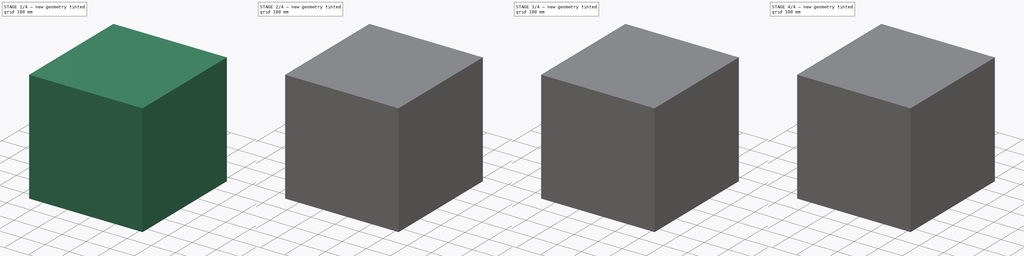
[diagram: build sequence overview — one tinted view per stage of 4, left to right]
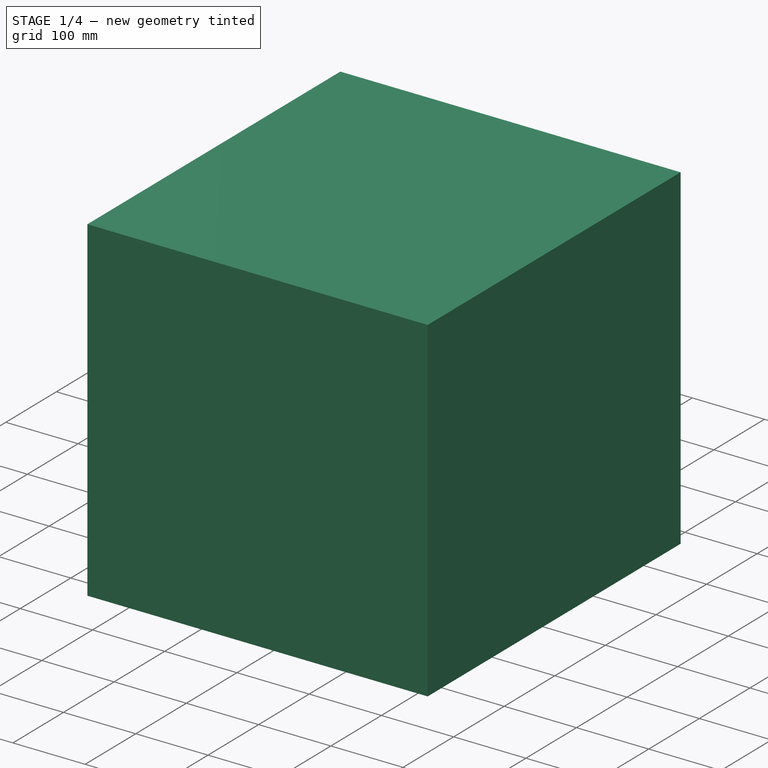
[diagram: stage 1 of 4 — iso view after this stage's code; geometry added in this stage tinted green]
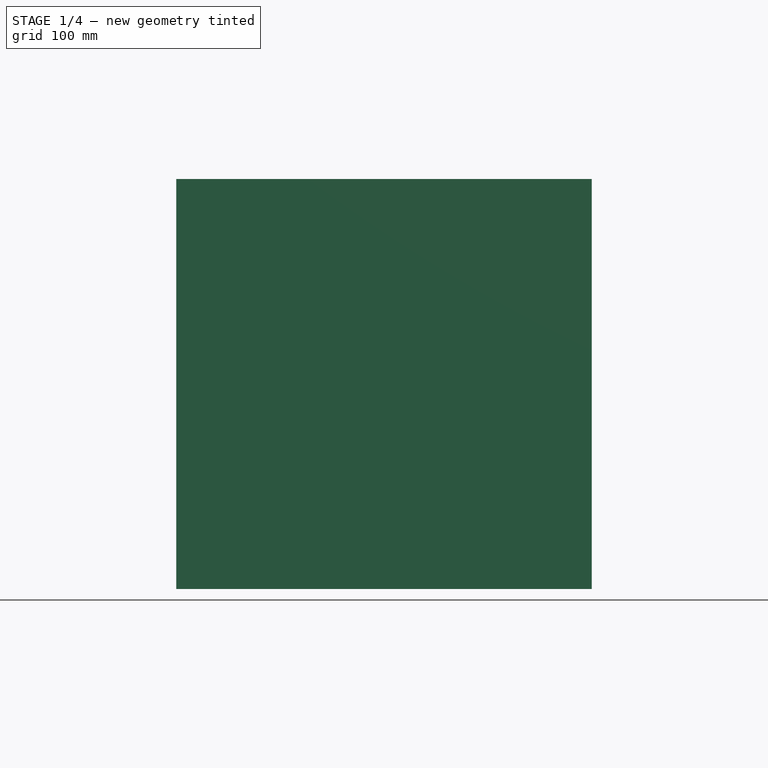
[diagram: stage 1 of 4 — front view after this stage's code; geometry added in this stage tinted green]
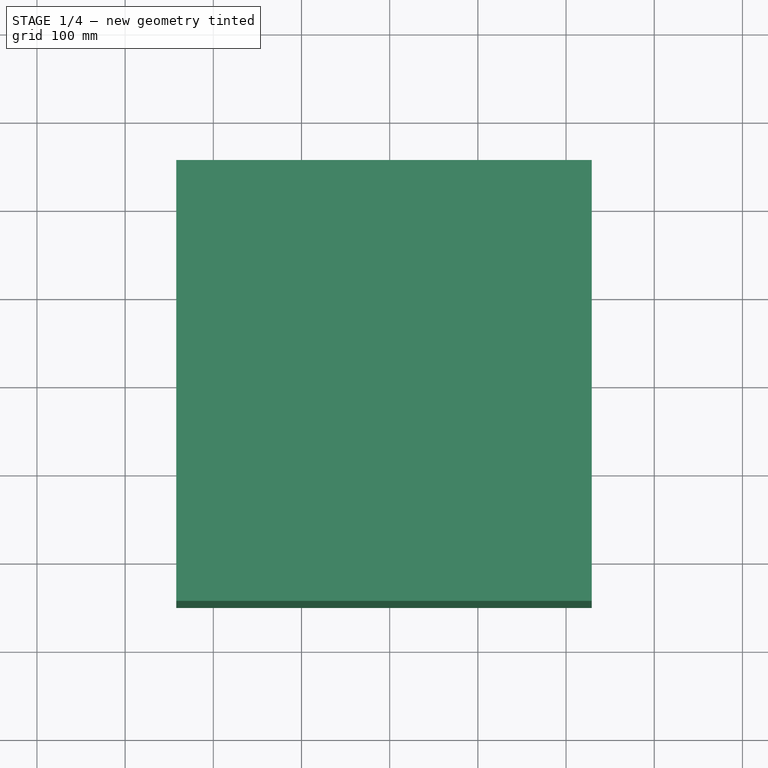
[diagram: stage 1 of 4 — top view after this stage's code; geometry added in this stage tinted green]
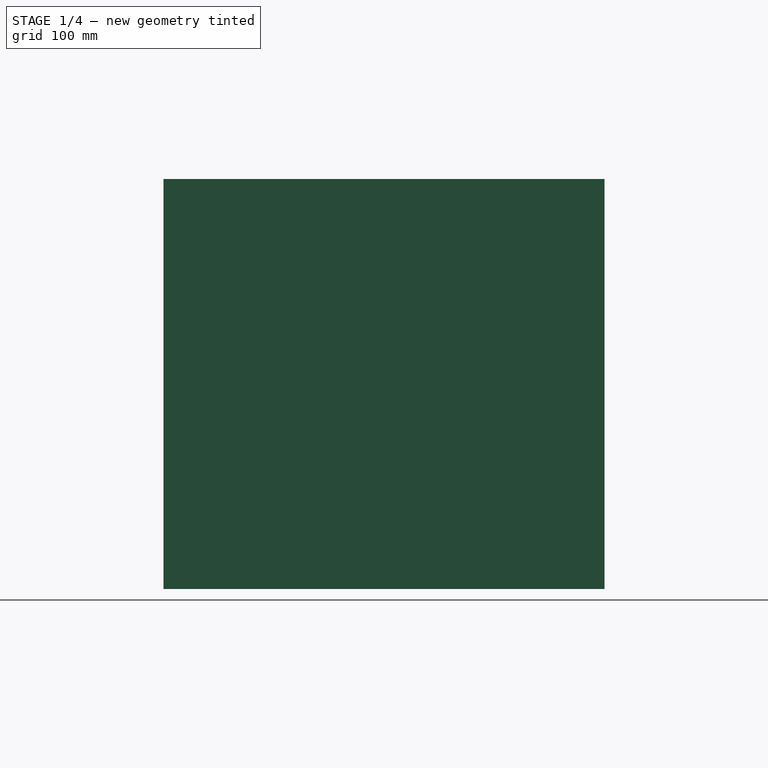
[diagram: stage 1 of 4 — right view after this stage's code; geometry added in this stage tinted green]
FCSTD DOCUMENT  (FreeCAD 0.20R29177 (Git))
Label: Helical_Antenna
License: All rights reserved
LicenseURL: http://en.wikipedia.org/wiki/All_rights_reserved
objects: Sketcher::SketchObject×8, Part::Extrusion×6, Part::FeaturePython×5, Part::Feature×3, Part::Sweep×2, Part::Fuse×1
note: 25 computed .brp shape members not serialized (recipe doc carries the construction recipe); baked Part::Feature solids carry a one-line shape summary decoded from their .brp

FEATURE [Part::Extrusion] Extrude001  label="gnd plate"
  Base = -> Face
  Dir = (0,0,1)
  DirMode = 2
  FaceMakerClass = Part::FaceMakerBullseye
  LengthFwd = 0.5
  LengthRev = 0
  Reversed = true
  Solid = false
  Symmetric = false
FEATURE [Sketcher::SketchObject] Sketch012  label="air sketch"
  FullyConstrained = false
  Placement = pos=(0,0,0) rot=(1,0,0;1.5708rad)
  sketch-geometry (4):
    g0: LineSegment StartX=-241.95 StartY=-130.815 StartZ=0 EndX=229.044 EndY=-130.815 EndZ=0
    g1: LineSegment StartX=229.044 StartY=-130.815 StartZ=0 EndX=229.044 EndY=333.94 EndZ=0
    g2: LineSegment StartX=229.044 StartY=333.94 StartZ=0 EndX=-241.95 EndY=333.94 EndZ=0
    g3: LineSegment StartX=-241.95 StartY=333.94 StartZ=0 EndX=-241.95 EndY=-130.815 EndZ=0
  constraints (8):
    c: Coincident(g0,g1)
    c: Coincident(g1,g2)
    c: Coincident(g2,g3)
    c: Coincident(g3,g0)
    c: Horizontal(g0)
    c: Horizontal(g2)
    c: Vertical(g1)
    c: Vertical(g3)
FEATURE [Part::Extrusion] Extrude007  label="air box"
  Base = -> Sketch012
  Dir = (0,-1,-3e-16)
  DirMode = 2
  FaceMakerClass = Part::FaceMakerBullseye
  LengthFwd = 500
  LengthRev = 0
  Solid = true
  Symmetric = true
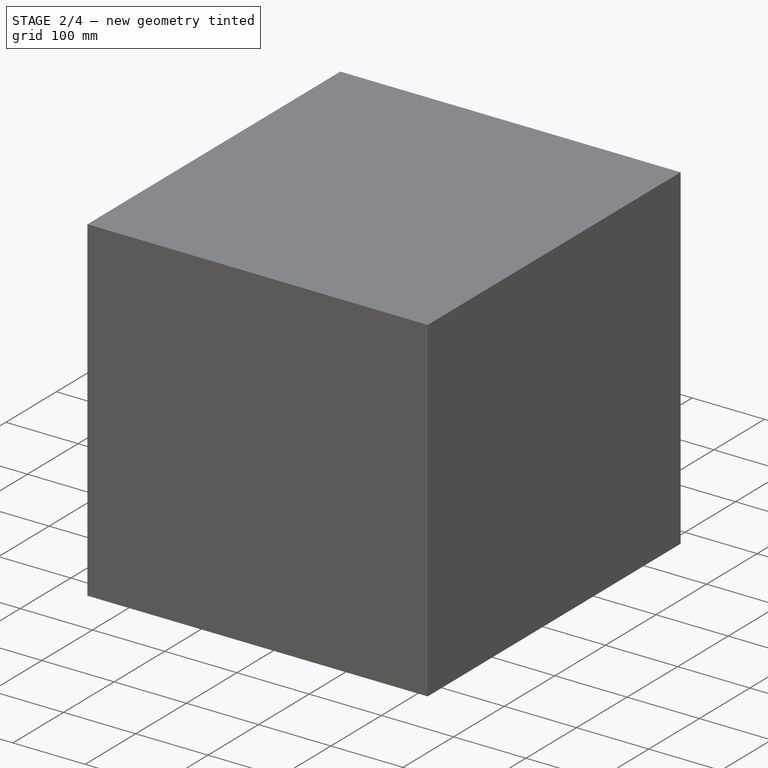
[diagram: stage 2 of 4 — iso view after this stage's code; geometry added in this stage tinted green]
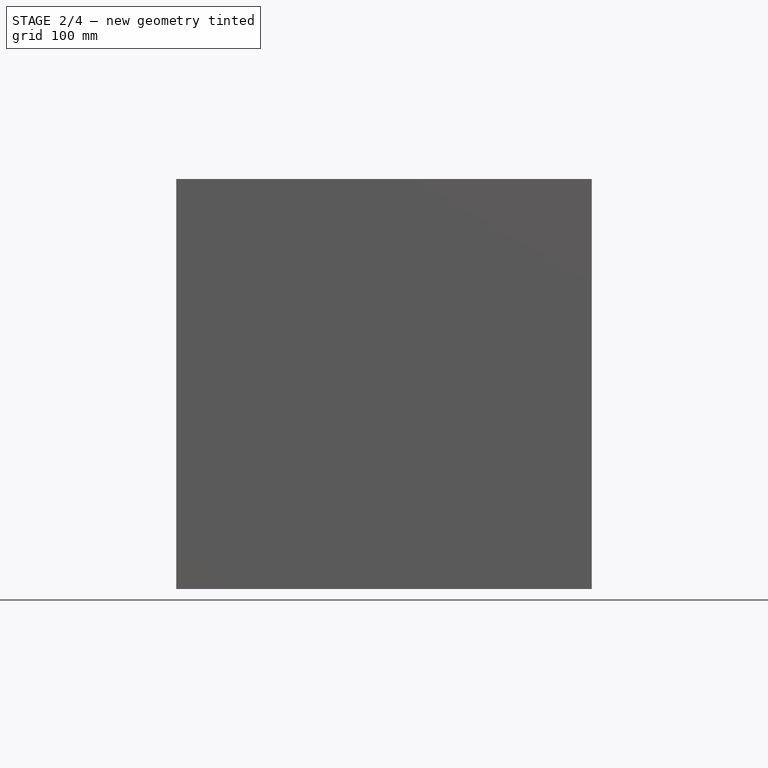
[diagram: stage 2 of 4 — front view after this stage's code; geometry added in this stage tinted green]
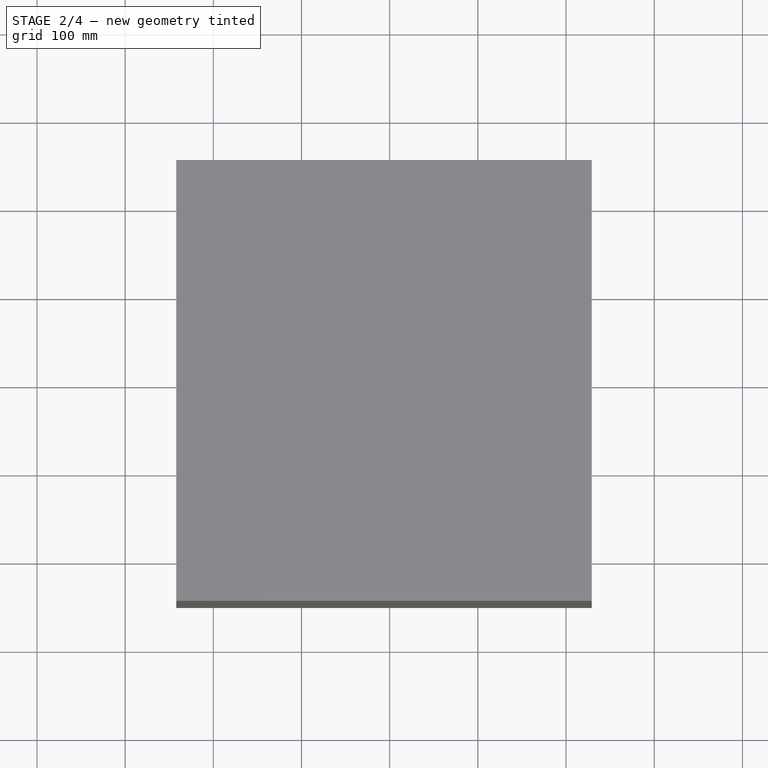
[diagram: stage 2 of 4 — top view after this stage's code; geometry added in this stage tinted green]
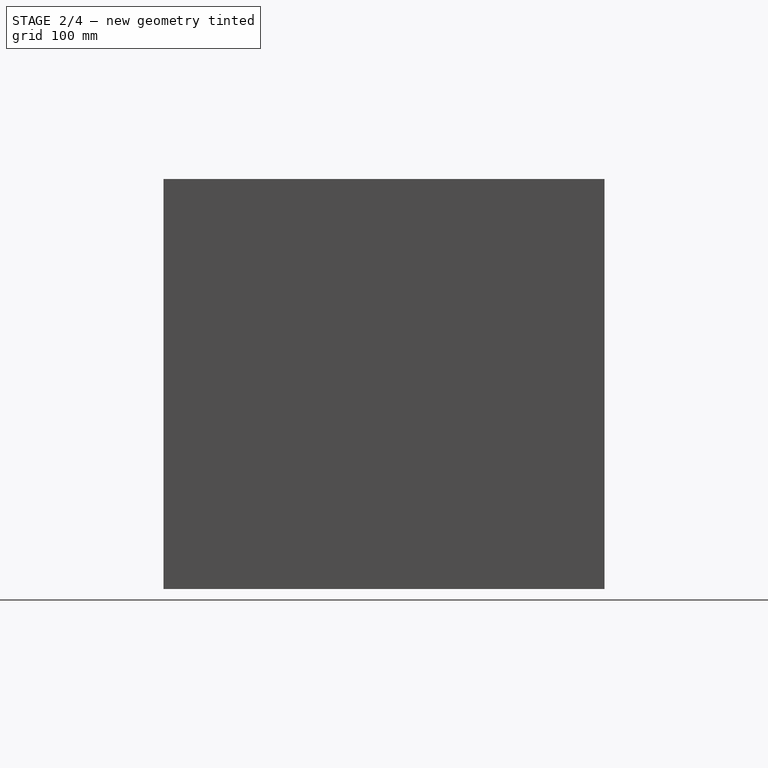
[diagram: stage 2 of 4 — right view after this stage's code; geometry added in this stage tinted green]
FEATURE [Sketcher::SketchObject] Sketch011
  FullyConstrained = false
  Placement = pos=(0,0,0) rot=(1,0,0;1.5708rad)
  sketch-geometry (4):
    g0: LineSegment StartX=-101.569 StartY=263.604 StartZ=0 EndX=99.3582 EndY=263.604 EndZ=0
    g1: LineSegment StartX=99.3582 StartY=263.604 StartZ=0 EndX=99.3582 EndY=-53.1358 EndZ=0
    g2: LineSegment StartX=99.3582 StartY=-53.1358 StartZ=0 EndX=-101.569 EndY=-53.1358 EndZ=0
    g3: LineSegment StartX=-101.569 StartY=-53.1358 StartZ=0 EndX=-101.569 EndY=263.604 EndZ=0
  constraints (8):
    c: Coincident(g0,g1)
    c: Coincident(g1,g2)
    c: Coincident(g2,g3)
    c: Coincident(g3,g0)
    c: Horizontal(g0)
    c: Horizontal(g2)
    c: Vertical(g1)
    c: Vertical(g3)
FEATURE [Part::Extrusion] Extrude006  label="farfield 1"
  Base = -> Sketch011
  Dir = (0,-1,2e-16)
  DirMode = 2
  FaceMakerClass = Part::FaceMakerBullseye
  LengthFwd = 200
  LengthRev = 0
  Solid = true
  Symmetric = true
FEATURE [Part::Extrusion] Extrude  label="feed port"
  Base = -> Sketch004
  Dir = (0,0,1)
  DirMode = 2
  FaceMakerClass = Part::FaceMakerBullseye
  LengthFwd = 1.3
  LengthRev = 0
  Placement = pos=(16,0,0) rot=(0,0,1;0rad)
  Solid = true
  Symmetric = false
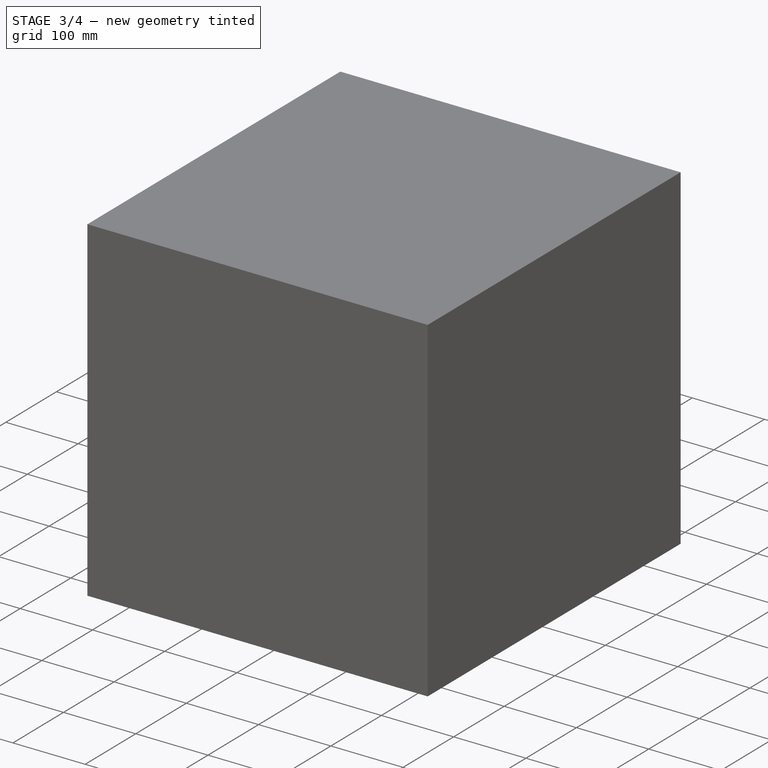
[diagram: stage 3 of 4 — iso view after this stage's code; geometry added in this stage tinted green]
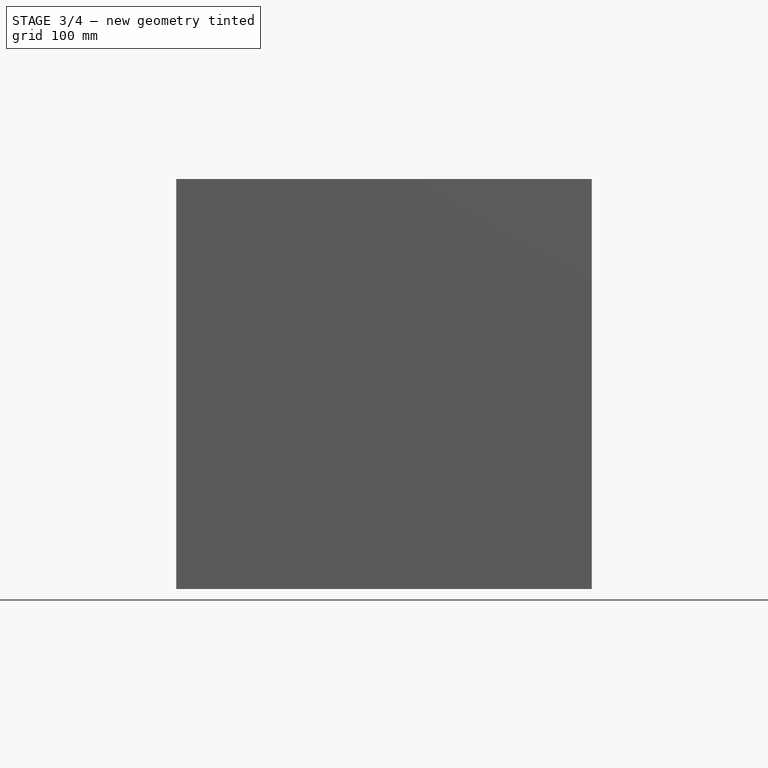
[diagram: stage 3 of 4 — front view after this stage's code; geometry added in this stage tinted green]
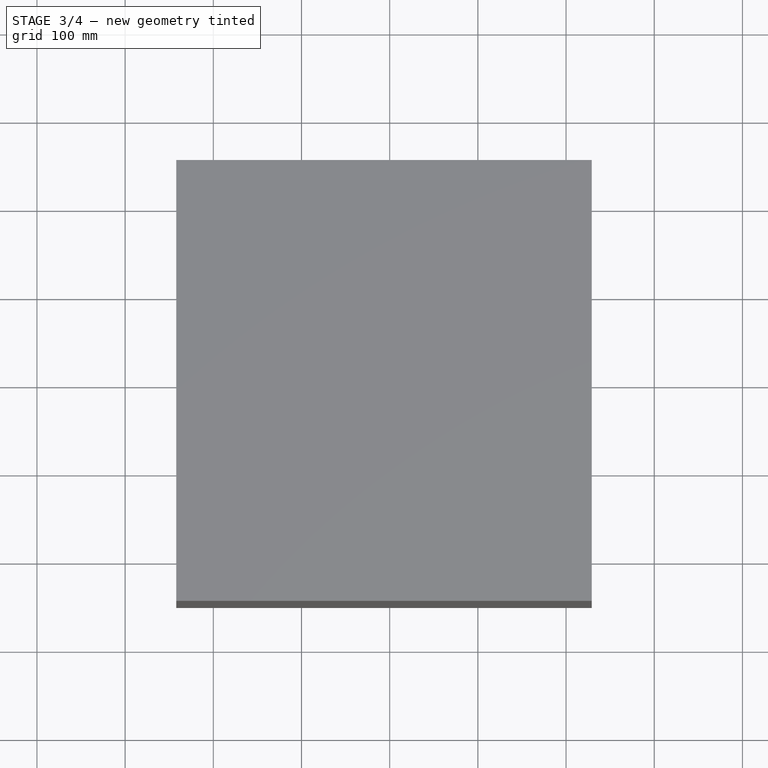
[diagram: stage 3 of 4 — top view after this stage's code; geometry added in this stage tinted green]
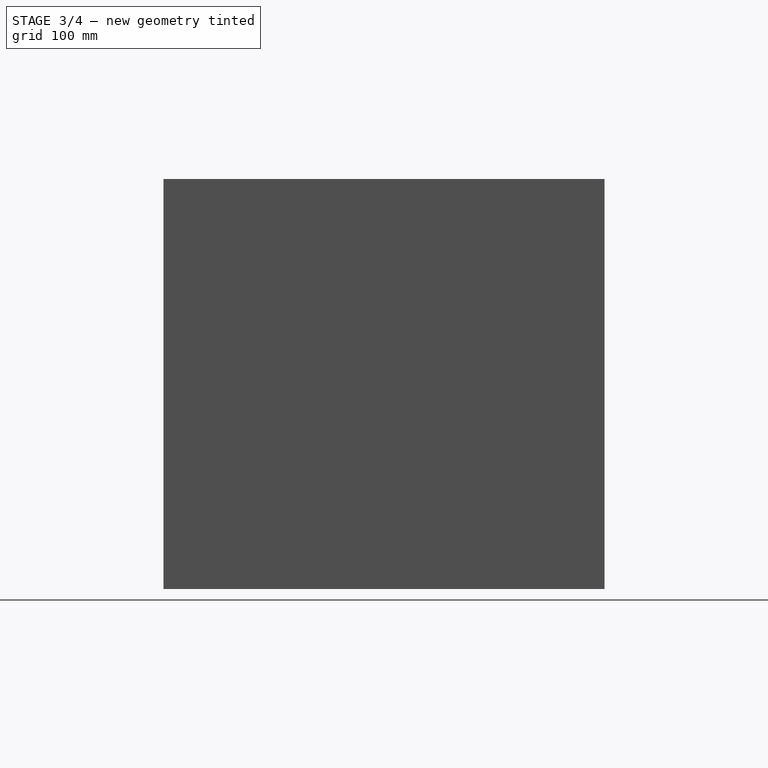
[diagram: stage 3 of 4 — right view after this stage's code; geometry added in this stage tinted green]
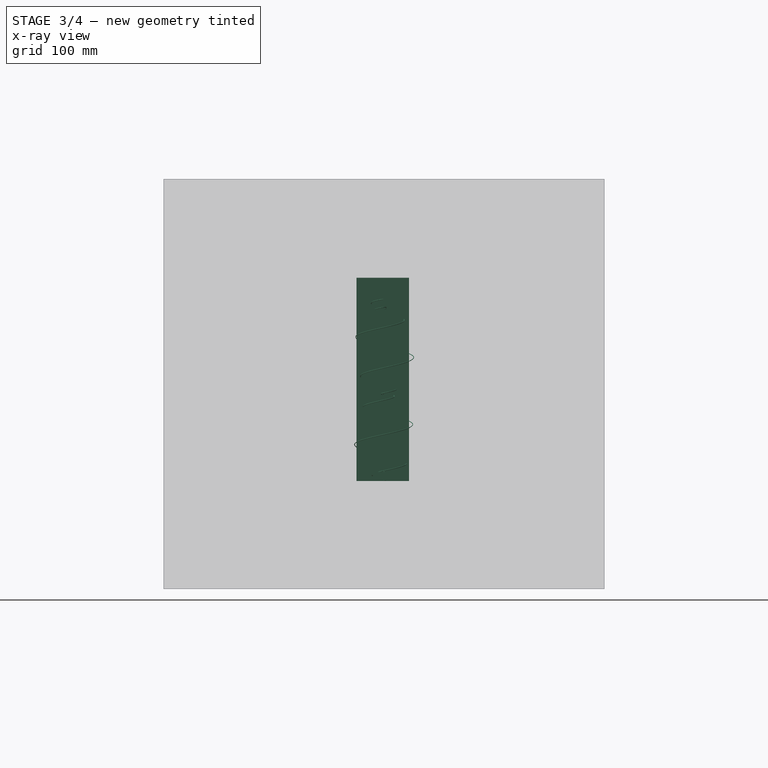
[diagram: stage 3 of 4 — x-ray composite at the right view; earlier geometry ghosted, this stage's added geometry solid]
FEATURE [Part::FeaturePython] CompSpring  # WARN: FeaturePython — macro-defined, semantics opaque (R4)
  Diameter = 32.2
  Flatness = 0
  Length = 215
  Placement = pos=(0,0,0.9) rot=(0,0,1;0rad)
  Turns = 10
  WireDiameter = 0.5
  WireOutput = true
FEATURE [Part::FeaturePython] Discretized_Edge  label="helical antenna"  # WARN: FeaturePython — macro-defined, semantics opaque (R4)
  Algorithm = 0
  Angular = 0.1
  Curvature = 0.1
  Deflection = 1
  Distance = 1
  Edge = -> CompSpring [Edge1]
  Minimum = 2
  NormalizedParameters = [0,0.0453436,0.0706398,0.0889156,0.103454,0.11563,0.126165,0.135483,0.143862,0.15149,0.158503,0.165002,0.171065,0.176753,0.182114,0.187187,0.192005,0.196595,0.200981,0.205181,0.209213,0.213091,0.216828,0.220435,0.223922,0.227298,0.23057,+473 more]
  Number = 500
  ParameterFirst = 0
  ParameterLast = 1
  Points = (500) [(15.85,0,1.15),(15.7197,2.02819,1.31567),(15.3342,4.01072,1.60461),(14.7021,5.92209,1.93628),(13.8347,7.73456,2.2906),(12.7465,9.42067,2.65921),+494 more]
  Target = 0
FEATURE [Sketcher::SketchObject] Sketch  label="sketch gnd"
  FullyConstrained = true
  sketch-geometry (1):
    g0: Circle CenterX=0 CenterY=0 CenterZ=0 NormalX=0 NormalY=0 NormalZ=1 AngleXU=0 Radius=62.5
  constraints (2):
    c: Coincident(g0,g-1)
    c: Radius(g0) = 62.5
FEATURE [Part::Feature] Face  label="gnd face"
  Placement = pos=(0,0,0.35) rot=(0,0,1;0rad)
  shape: bbox 125 x 125 x 2e-07 mm, 1 faces, 0 solids (baked)
FEATURE [Sketcher::SketchObject] Sketch004  label="sketch feed"
  FullyConstrained = false
  sketch-geometry (4):
    g0: LineSegment StartX=-0.508895 StartY=0.460921 StartZ=0 EndX=0.590292 EndY=0.460921 EndZ=0
    g1: LineSegment StartX=0.590292 StartY=0.460921 StartZ=0 EndX=0.590292 EndY=-0.413342 EndZ=0
    g2: LineSegment StartX=0.590292 StartY=-0.413342 StartZ=0 EndX=-0.508895 EndY=-0.413342 EndZ=0
    g3: LineSegment StartX=-0.508895 StartY=-0.413342 StartZ=0 EndX=-0.508895 EndY=0.460921 EndZ=0
  constraints (8):
    c: Coincident(g0,g1)
    c: Coincident(g1,g2)
    c: Coincident(g2,g3)
    c: Coincident(g3,g0)
    c: Horizontal(g0)
    c: Horizontal(g2)
    c: Vertical(g1)
    c: Vertical(g3)
FEATURE [Part::FeaturePython] Line  # WARN: FeaturePython — macro-defined, semantics opaque (R4)
  Vertex1 = -> Discretized_Edge [Vertex1]
  Vertex2 = -> Discretized_Edge [Vertex2]
FEATURE [Sketcher::SketchObject] Sketch005  label="sketch wire profile"
  FullyConstrained = true
  MapMode = 7
  Placement = pos=(15.85,-4e-16,1.15) rot=(0.999049,0.032059,0.029552;1.65308rad)
  Support = -> [Line]
  sketch-geometry (1):
    g0: Circle CenterX=0 CenterY=0 CenterZ=0 NormalX=0 NormalY=0 NormalZ=1 AngleXU=0 Radius=0.5
  constraints (2):
    c: Coincident(g0,g-1)
    c: Radius(g0) = 0.5
FEATURE [Part::Feature] Face001  label="face wire profile"
  shape: bbox 0.9921 x 0.1461 x 0.9972 mm, 1 faces, 0 solids (baked)
FEATURE [Part::Sweep] Sweep  label="wire 3d object"
  Frenet = false
  Sections = -> [Face001]
  Solid = true
  Spine = -> CompSpring [Edge1]
  Transition = 1
FEATURE [Part::FeaturePython] Point  # WARN: FeaturePython — macro-defined, semantics opaque (R4)
  Placement = pos=(0,0,3) rot=(0,0,1;0rad)
  X = 0
  Y = 0
  Z = 3
FEATURE [Part::FeaturePython] Line001  # WARN: FeaturePython — macro-defined, semantics opaque (R4)
  Vertex1 = -> Point [Vertex1]
  Vertex2 = -> CompSpring [Vertex1]
FEATURE [Sketcher::SketchObject] Sketch007
  FullyConstrained = true
  MapMode = 7
  Placement = pos=(0,0,3) rot=(0.553656,-0.553656,-0.622037;2.02866rad)
  Support = -> [Line001]
  sketch-geometry (1):
    g0: Circle CenterX=0 CenterY=0 CenterZ=0 NormalX=0 NormalY=0 NormalZ=1 AngleXU=0 Radius=0.5
  constraints (2):
    c: Coincident(g0,g-1)
    c: Radius(g0) = 0.5
FEATURE [Part::Feature] Face002
  shape: bbox 0.01266 x 1 x 0.9999 mm, 1 faces, 0 solids (baked)
FEATURE [Part::Sweep] Sweep001  label="wire to feed"
  Frenet = false
  Sections = -> [Face002]
  Solid = true
  Spine = -> Line001 [Edge1]
  Transition = 1
FEATURE [Sketcher::SketchObject] Sketch010  label="sketch H monitor 1"
  FullyConstrained = false
  Placement = pos=(0,0,0) rot=(0.57735,0.57735,0.57735;2.0944rad)
  sketch-geometry (4):
    g0: LineSegment StartX=-31.3162 StartY=222.075 StartZ=0 EndX=28.3477 EndY=222.075 EndZ=0
    g1: LineSegment StartX=28.3477 StartY=222.075 StartZ=0 EndX=28.3477 EndY=-8.86554 EndZ=0
    g2: LineSegment StartX=28.3477 StartY=-8.86554 StartZ=0 EndX=-31.3162 EndY=-8.86554 EndZ=0
    g3: LineSegment StartX=-31.3162 StartY=-8.86554 StartZ=0 EndX=-31.3162 EndY=222.075 EndZ=0
  constraints (8):
    c: Coincident(g0,g1)
    c: Coincident(g1,g2)
    c: Coincident(g2,g3)
    c: Coincident(g3,g0)
    c: Horizontal(g0)
    c: Horizontal(g2)
    c: Vertical(g1)
    c: Vertical(g3)
FEATURE [Part::Extrusion] Extrude005  label="H monitor 1"
  Base = -> Sketch010
  Dir = (1,0,0)
  DirMode = 2
  FaceMakerClass = Part::FaceMakerBullseye
  LengthFwd = 0.5
  LengthRev = 0
  Solid = true
  Symmetric = true
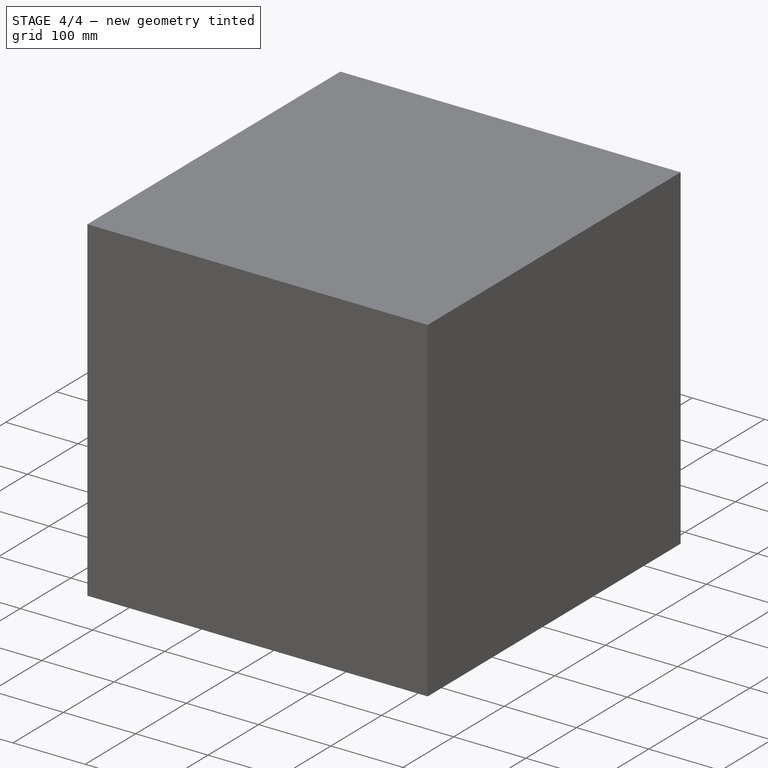
[diagram: stage 4 of 4 — iso view after this stage's code; geometry added in this stage tinted green]
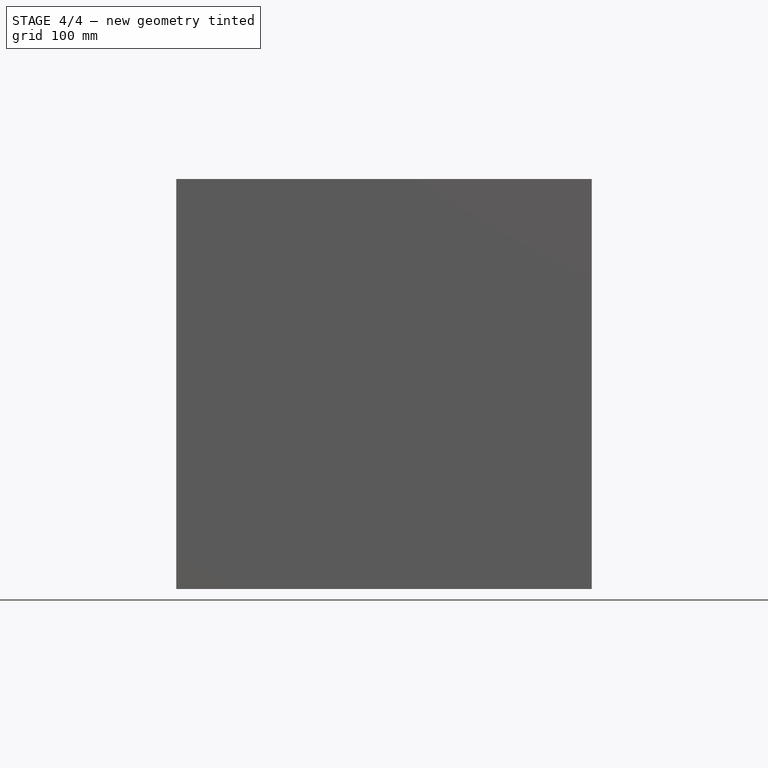
[diagram: stage 4 of 4 — front view after this stage's code; geometry added in this stage tinted green]
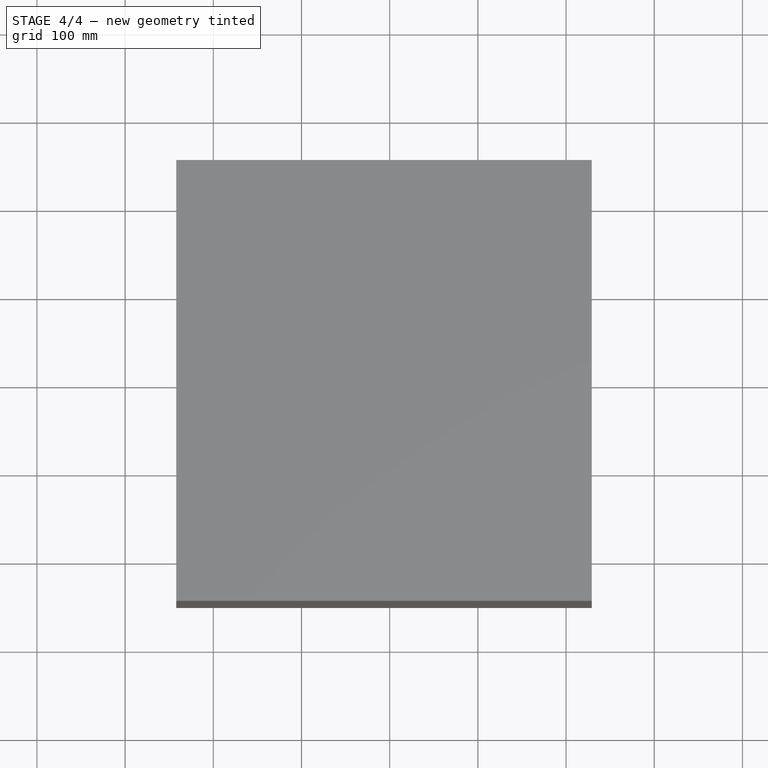
[diagram: stage 4 of 4 — top view after this stage's code; geometry added in this stage tinted green]
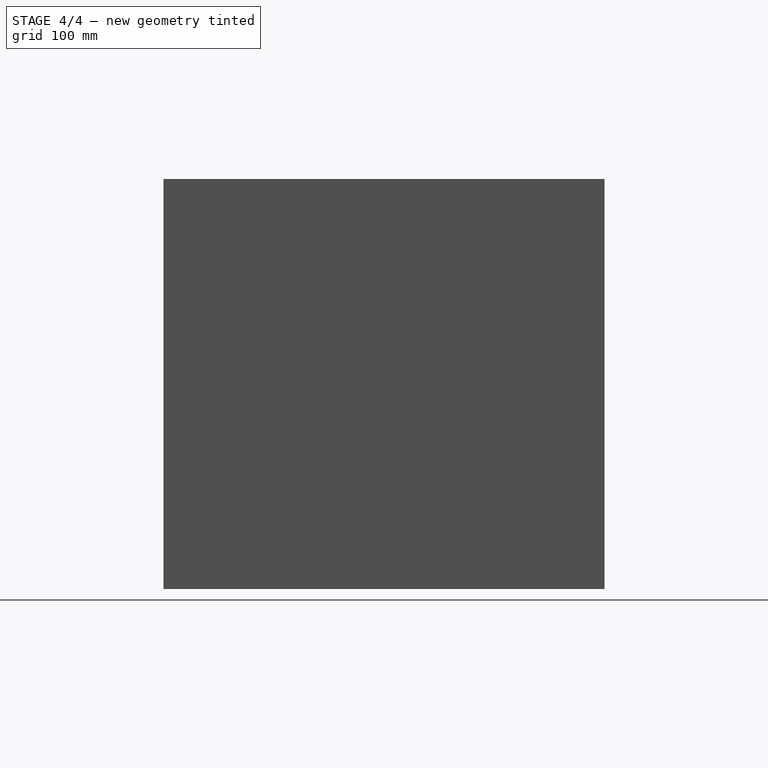
[diagram: stage 4 of 4 — right view after this stage's code; geometry added in this stage tinted green]
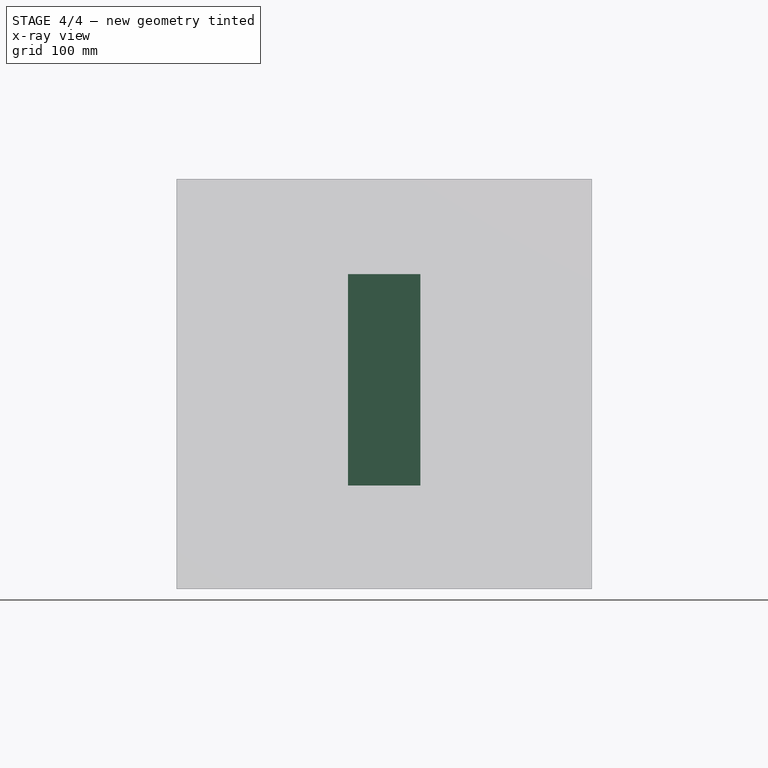
[diagram: stage 4 of 4 — x-ray composite at the front view; earlier geometry ghosted, this stage's added geometry solid]
FEATURE [Sketcher::SketchObject] Sketch006  label="sketch E monitor 1"
  FullyConstrained = false
  Placement = pos=(0,0,0) rot=(1,0,0;1.5708rad)
  sketch-geometry (4):
    g0: LineSegment StartX=-47.5808 StartY=226.202 StartZ=0 EndX=34.8134 EndY=226.202 EndZ=0
    g1: LineSegment StartX=34.8134 StartY=226.202 StartZ=0 EndX=34.8134 EndY=-13.9613 EndZ=0
    g2: LineSegment StartX=34.8134 StartY=-13.9613 StartZ=0 EndX=-47.5808 EndY=-13.9613 EndZ=0
    g3: LineSegment StartX=-47.5808 StartY=-13.9613 StartZ=0 EndX=-47.5808 EndY=226.202 EndZ=0
  constraints (8):
    c: Coincident(g0,g1)
    c: Coincident(g1,g2)
    c: Coincident(g2,g3)
    c: Coincident(g3,g0)
    c: Horizontal(g0)
    c: Horizontal(g2)
    c: Vertical(g1)
    c: Vertical(g3)
FEATURE [Part::Extrusion] Extrude002  label="E monitor 1"
  Base = -> Sketch006
  Dir = (0,-1,2e-16)
  DirMode = 2
  FaceMakerClass = Part::FaceMakerBullseye
  LengthFwd = 0.1
  LengthRev = 0
  Solid = true
  Symmetric = true
FEATURE [Part::Fuse] Fusion  label="helical antenna wire"
  Base = -> Sweep
  Tool = -> Sweep001
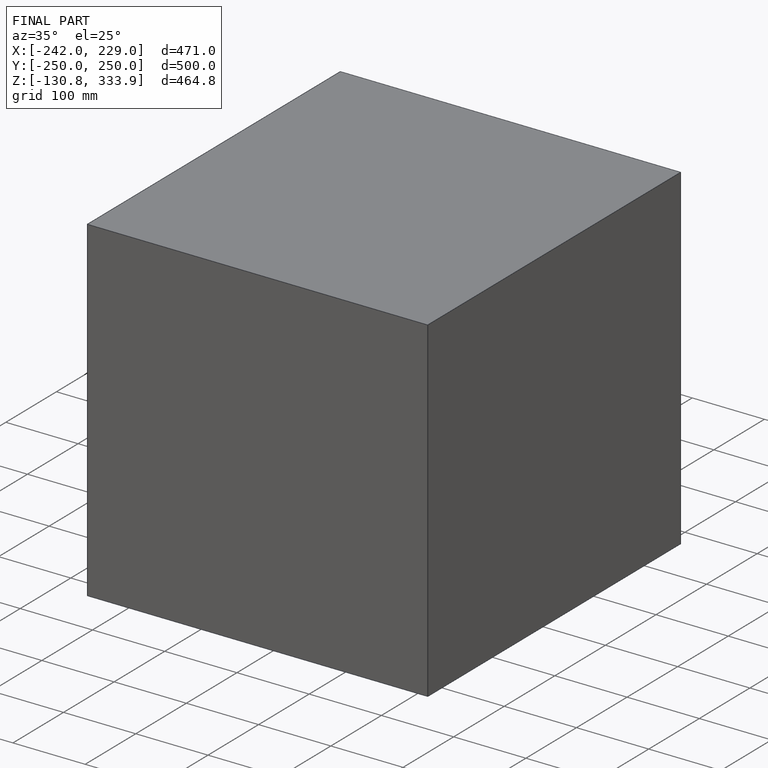
[diagram: finished part — iso view with bounding-box wireframe]
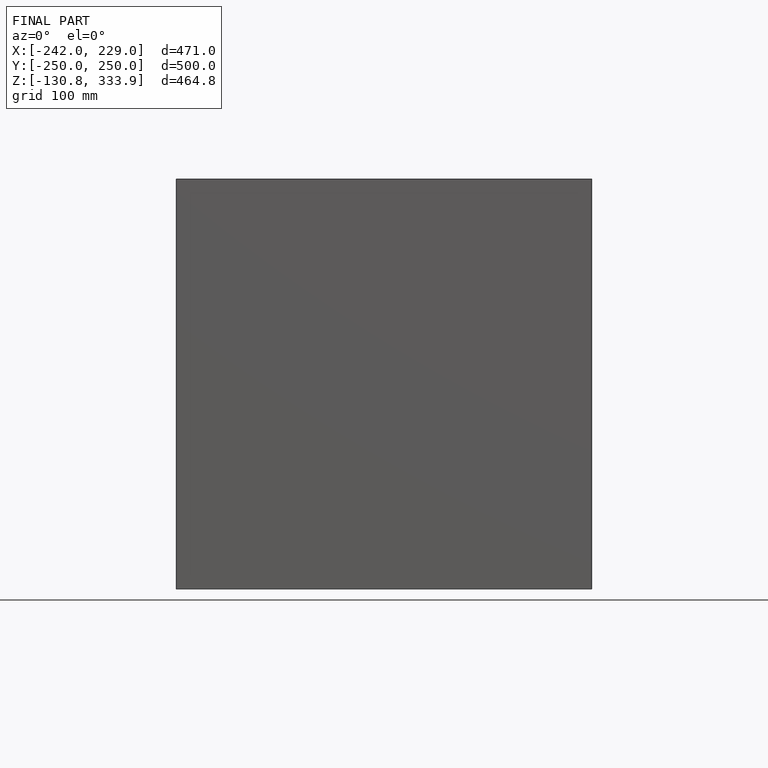
[diagram: finished part — front view with bounding-box wireframe]
